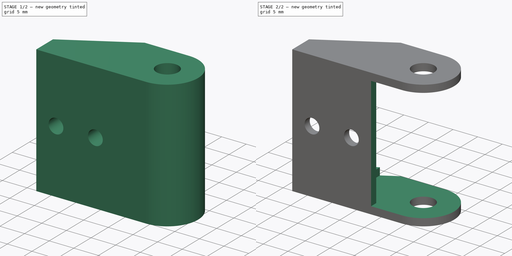
[diagram: build sequence overview — one tinted view per stage of 2, left to right]
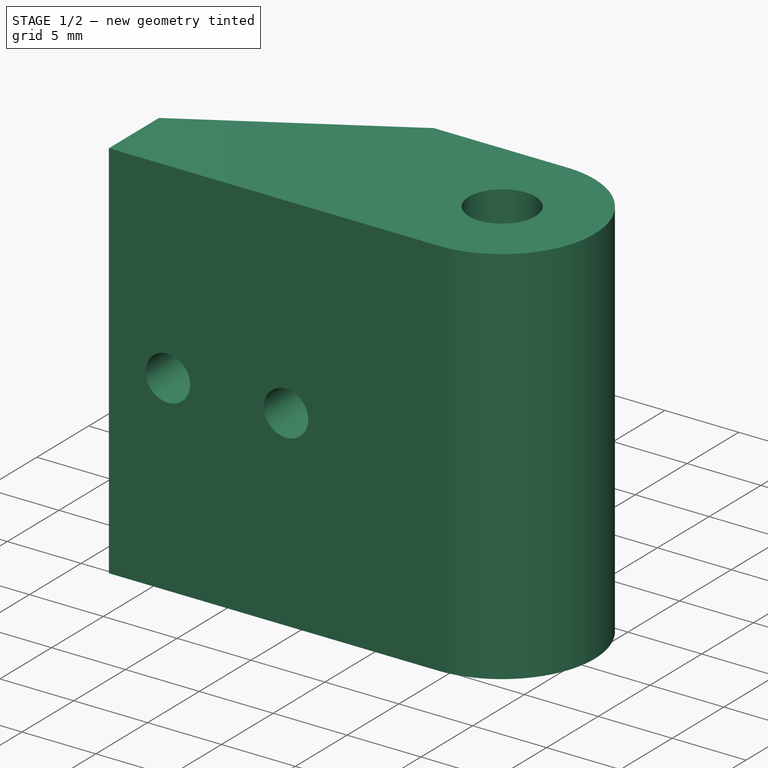
[diagram: stage 1 of 2 — iso view after this stage's code; geometry added in this stage tinted green]
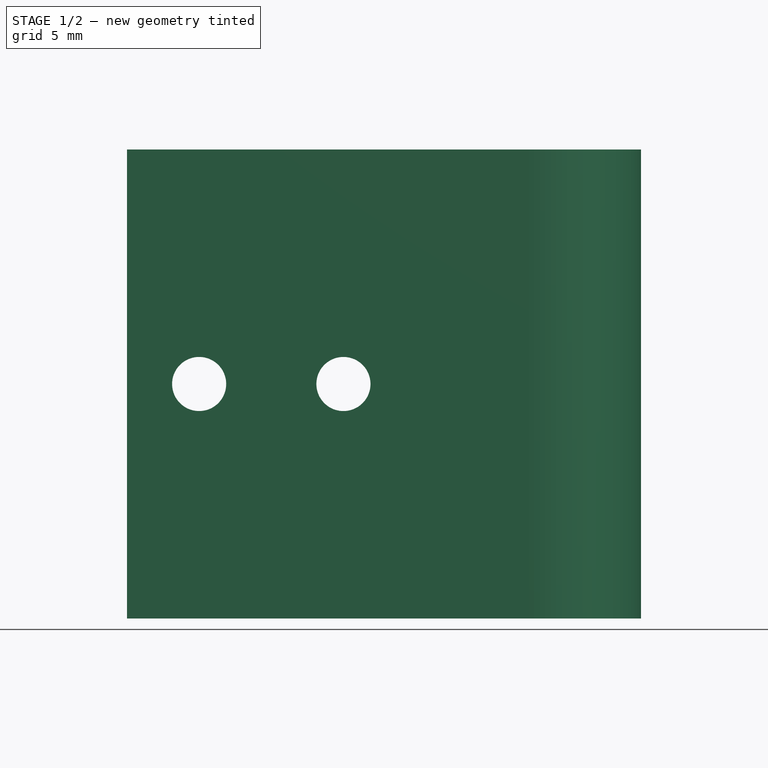
[diagram: stage 1 of 2 — front view after this stage's code; geometry added in this stage tinted green]
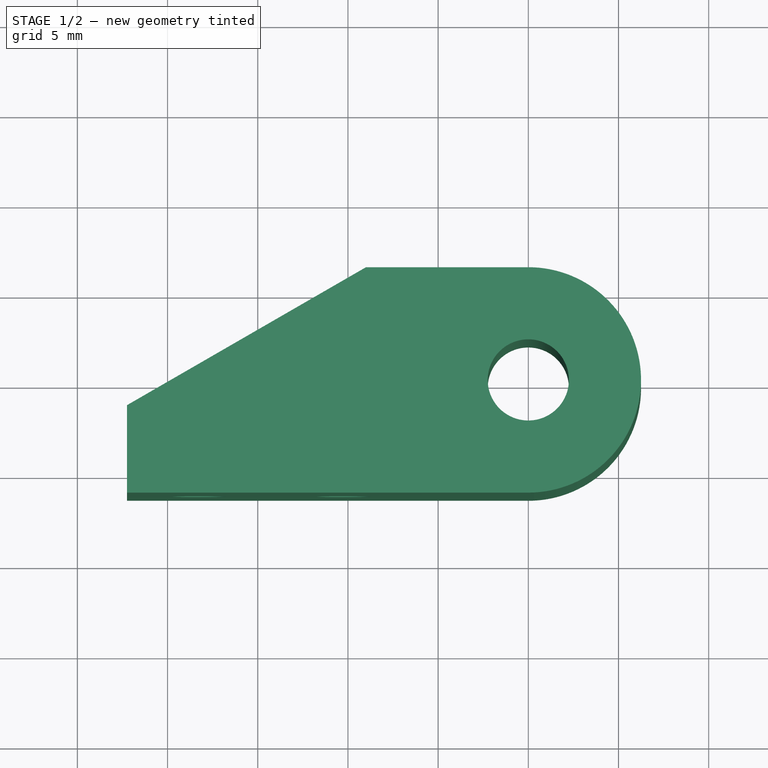
[diagram: stage 1 of 2 — top view after this stage's code; geometry added in this stage tinted green]
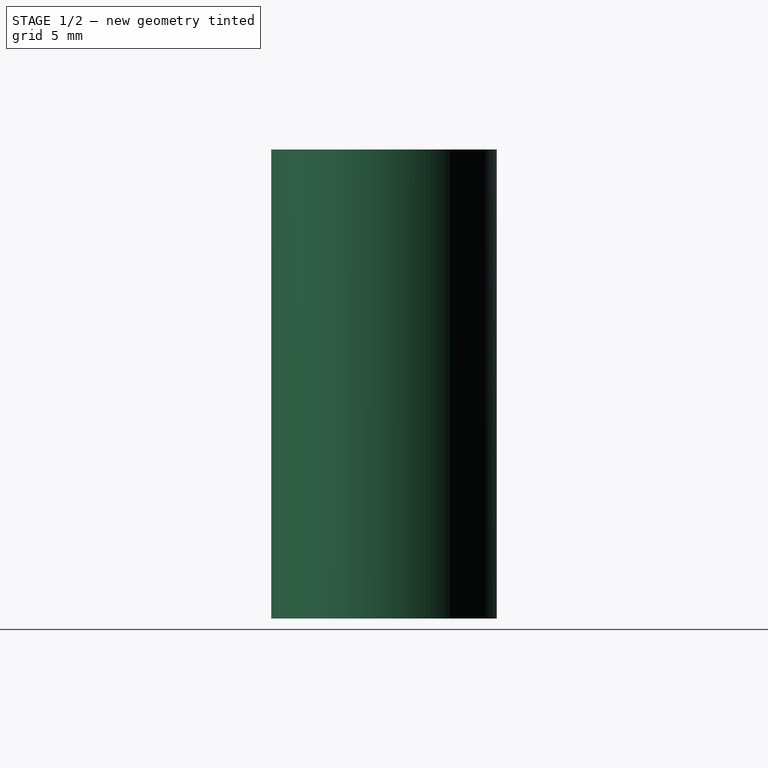
[diagram: stage 1 of 2 — right view after this stage's code; geometry added in this stage tinted green]
FCSTD DOCUMENT  (FreeCAD 0.14R3310 (Git))
Label: 83. IGUS (PORTACABLES GRANDE) CABLE CHAIN (ANCLAJE AL EJE)
License: CC-BY 3.0
LicenseURL: http://creativecommons.org/licenses/by/3.0/
objects: Sketcher::SketchObject×4, PartDesign::Pocket×3, PartDesign::Pad×1
note: 12 computed .brp shape members not serialized (recipe doc carries the construction recipe); baked Part::Feature solids carry a one-line shape summary decoded from their .brp

FEATURE [Sketcher::SketchObject] Sketch
  sketch-geometry (6):
    g0: Circle CenterX=0 CenterY=0 CenterZ=0 NormalX=0 NormalY=0 NormalZ=1 Radius=2.25
    g1: ArcOfCircle CenterX=0 CenterY=0 CenterZ=0 NormalX=0 NormalY=0 NormalZ=1 Radius=6.25 StartAngle=4.71239 EndAngle=7.85398
    g2: LineSegment StartX=4.0798e-08 StartY=6.25 StartZ=0 EndX=-8.99979 EndY=6.25 EndZ=0
    g3: LineSegment StartX=2.56518e-05 StartY=-6.25 StartZ=0 EndX=-22.25 EndY=-6.25 EndZ=0
    g4: LineSegment StartX=-22.25 StartY=-6.25 StartZ=0 EndX=-22.25 EndY=-1.4 EndZ=0
    g5: LineSegment StartX=-22.25 StartY=-1.4 StartZ=0 EndX=-8.99979 EndY=6.25 EndZ=0
  constraints (18):
    c: Coincident(g0,g-1)
    c: Radius(g0) = 2.25
    c: Coincident(g1,g-1)
    c: Coincident(g2,g1)
    c: Horizontal(g2)
    c: Coincident(g3,g1)
    c: Horizontal(g3)
    c: Tangent(g3,g1)
    c: Tangent(g2,g1)
    c: Distance(g3) = 22.25
    c: Radius(g1) = 6.25
    c: Vertical(g4)
    c: Distance(g4) = 4.85
    c: Coincident(g5,g4)
    c: Coincident(g5,g2)
    c: Angle(g4,g5) = 2.0944
    c: Distance(g5) = 15.3
    c: Coincident(g4,g3)
FEATURE [PartDesign::Pad] Pad
  Length = 26
  Length2 = 100
  Sketch = -> Sketch
  Type = 0
FEATURE [Sketcher::SketchObject] Sketch001
  ExternalGeometry = -> [Pad]
  Placement = pos=(0,-6.25,0) rot=(1,0,0;1.5708rad)
  Support = -> Pad [Face5]
  sketch-geometry (2):
    g0: Circle CenterX=-18.25 CenterY=13 CenterZ=0 NormalX=0 NormalY=0 NormalZ=1 Radius=1.5
    g1: Circle CenterX=-10.25 CenterY=13 CenterZ=0 NormalX=0 NormalY=0 NormalZ=1 Radius=1.5
  constraints (6):
    c: Equal(g0,g1)
    c: Radius(g0) = 1.5
    c: Distance(g0,g-3) = 4
    c: DistanceY(g-1,g0) = 13
    c: DistanceY(g-1,g1) = 13
    c: Distance(g1,g0) = 8
FEATURE [PartDesign::Pocket] Pocket
  Length = 5
  Sketch = -> Sketch001
  Type = 1
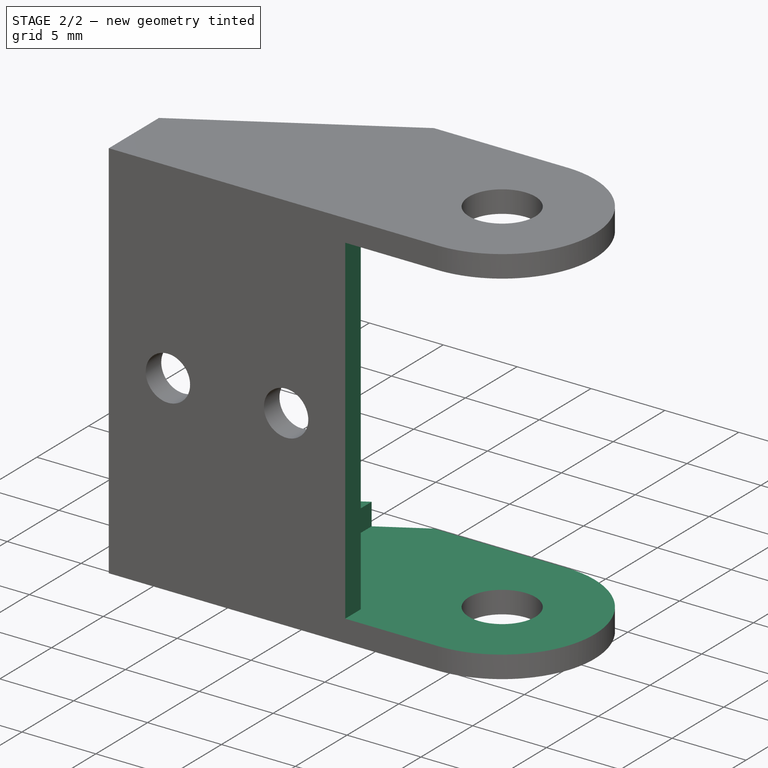
[diagram: stage 2 of 2 — iso view after this stage's code; geometry added in this stage tinted green]
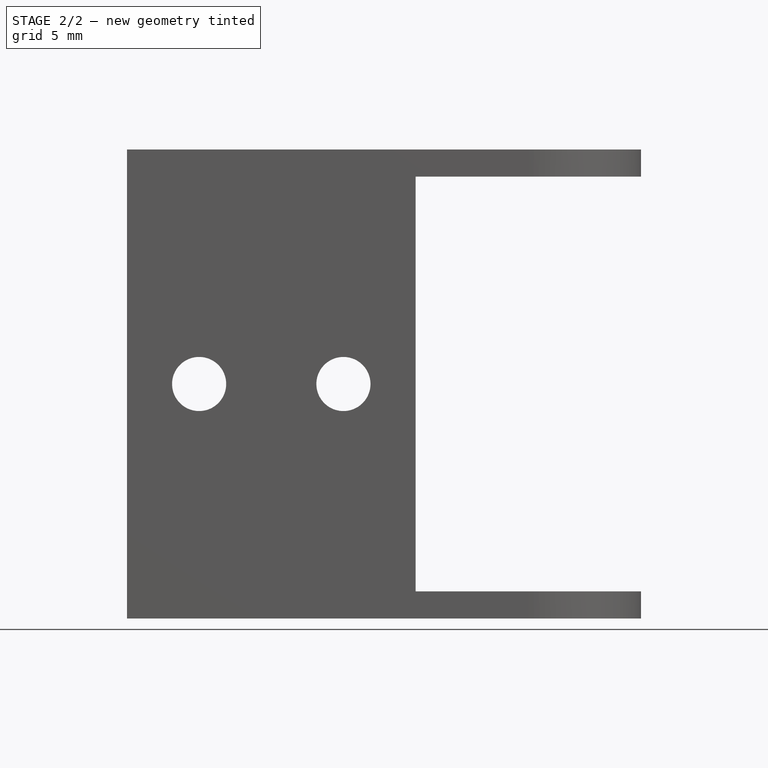
[diagram: stage 2 of 2 — front view after this stage's code; geometry added in this stage tinted green]
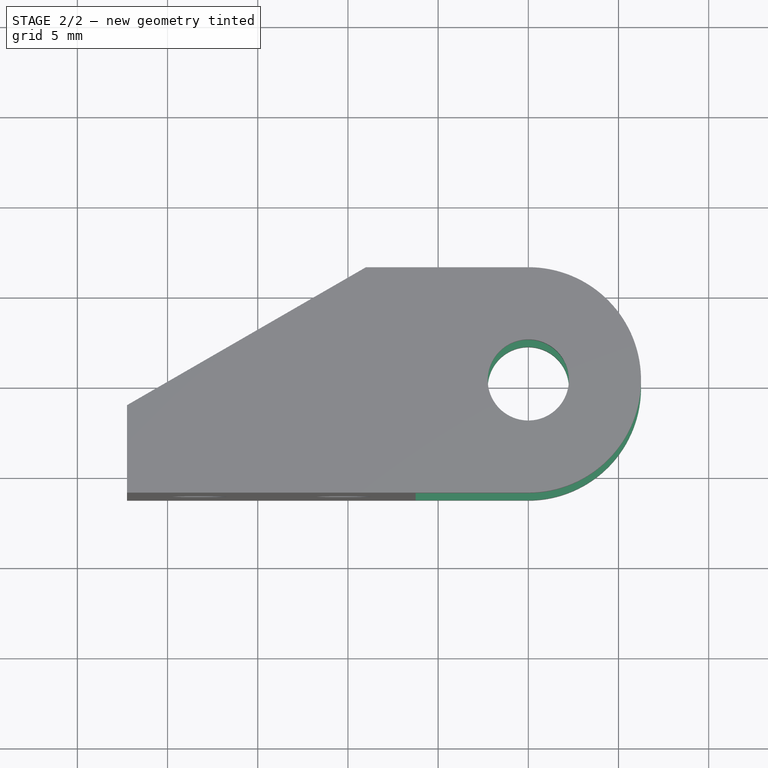
[diagram: stage 2 of 2 — top view after this stage's code; geometry added in this stage tinted green]
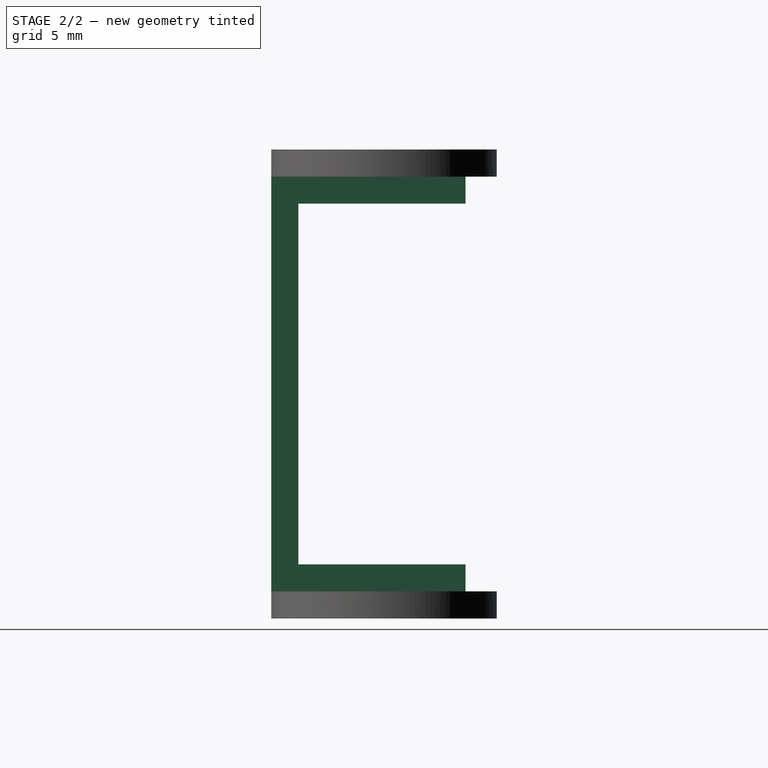
[diagram: stage 2 of 2 — right view after this stage's code; geometry added in this stage tinted green]
FEATURE [Sketcher::SketchObject] Sketch002
  ExternalGeometry = -> [Pocket]
  Placement = pos=(0,6.25,0) rot=(0,0.707107,0.707107;3.14159rad)
  Support = -> Pocket [Face3]
  sketch-geometry (9):
    g0: LineSegment StartX=12 StartY=23 StartZ=0 EndX=22.25 EndY=23 EndZ=0
    g1: LineSegment StartX=22.25 StartY=23 StartZ=0 EndX=22.25 EndY=3 EndZ=0
    g2: LineSegment StartX=22.25 StartY=3 StartZ=0 EndX=12 EndY=3 EndZ=0
    g3: LineSegment StartX=-13 StartY=24.5 StartZ=0 EndX=12 EndY=24.5 EndZ=0
    g4: LineSegment [constr] StartX=12 StartY=24.5 StartZ=0 EndX=12 EndY=1.5 EndZ=0
    g5: LineSegment StartX=12 StartY=1.5 StartZ=0 EndX=-13 EndY=1.5 EndZ=0
    g6: LineSegment StartX=-13 StartY=1.5 StartZ=0 EndX=-13 EndY=24.5 EndZ=0
    g7: LineSegment StartX=12 StartY=23 StartZ=0 EndX=12 EndY=24.5 EndZ=0
    g8: LineSegment StartX=12 StartY=3 StartZ=0 EndX=12 EndY=1.5 EndZ=0
  constraints (26):
    c: Coincident(g0,g1)
    c: Coincident(g1,g2)
    c: Horizontal(g0)
    c: Horizontal(g2)
    c: Vertical(g1)
    c: Coincident(g3,g4)
    c: Coincident(g4,g5)
    c: Coincident(g5,g6)
    c: Coincident(g6,g3)
    c: Horizontal(g3)
    c: Horizontal(g5)
    c: Vertical(g4)
    c: Vertical(g6)
    c: PointOnObject(g0,g4)
    c: PointOnObject(g2,g4)
    c: PointOnObject(g0,g-3)
    c: Distance(g0,g4) = 10.25
    c: Distance(g3) = 25
    c: Coincident(g7,g0)
    c: Coincident(g7,g3)
    c: Coincident(g8,g2)
    c: Coincident(g8,g4)
    c: Distance(g1,g-3) = 3
    c: Distance(g-3,g0) = 3
    c: Distance(g6) = 23
    c: Distance(g4,g2) = 1.5
FEATURE [PartDesign::Pocket] Pocket001
  Length = 11
  Sketch = -> Sketch002
  Type = 0
FEATURE [Sketcher::SketchObject] Sketch003
  ExternalGeometry = -> [Pocket001]
  Placement = pos=(0,-4.75,0) rot=(0,0.707107,0.707107;3.14159rad)
  Support = -> Pocket001 [Face5]
  sketch-geometry (4):
    g0: LineSegment StartX=-13.75 StartY=24.5 StartZ=0 EndX=6.24997 EndY=24.5 EndZ=0
    g1: LineSegment StartX=6.24997 StartY=24.5 StartZ=0 EndX=6.24997 EndY=1.5 EndZ=0
    g2: LineSegment StartX=6.24997 StartY=1.5 StartZ=0 EndX=-13.75 EndY=1.5 EndZ=0
    g3: LineSegment StartX=-13.75 StartY=1.5 StartZ=0 EndX=-13.75 EndY=24.5 EndZ=0
  constraints (12):
    c: Coincident(g0,g1)
    c: Coincident(g1,g2)
    c: Coincident(g2,g3)
    c: Coincident(g3,g0)
    c: Horizontal(g0)
    c: Horizontal(g2)
    c: Vertical(g1)
    c: Vertical(g3)
    c: Distance(g0,g-5) = 16
    c: PointOnObject(g0,g-3)
    c: PointOnObject(g1,g-4)
    c: Distance(g0) = 20
FEATURE [PartDesign::Pocket] Pocket002
  Length = 5
  Sketch = -> Sketch003
  Type = 0
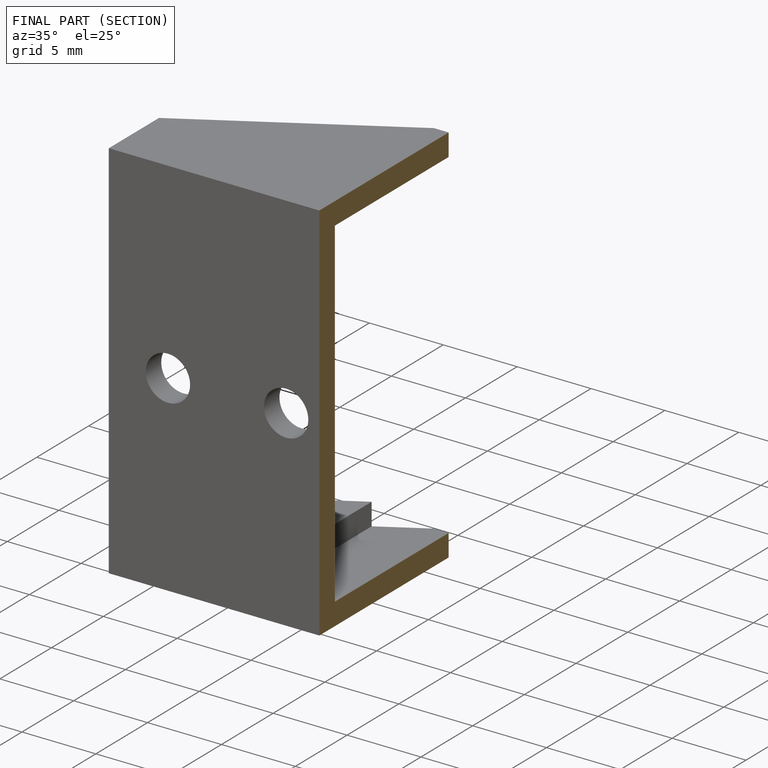
[diagram: finished part — half-section view (interior)]
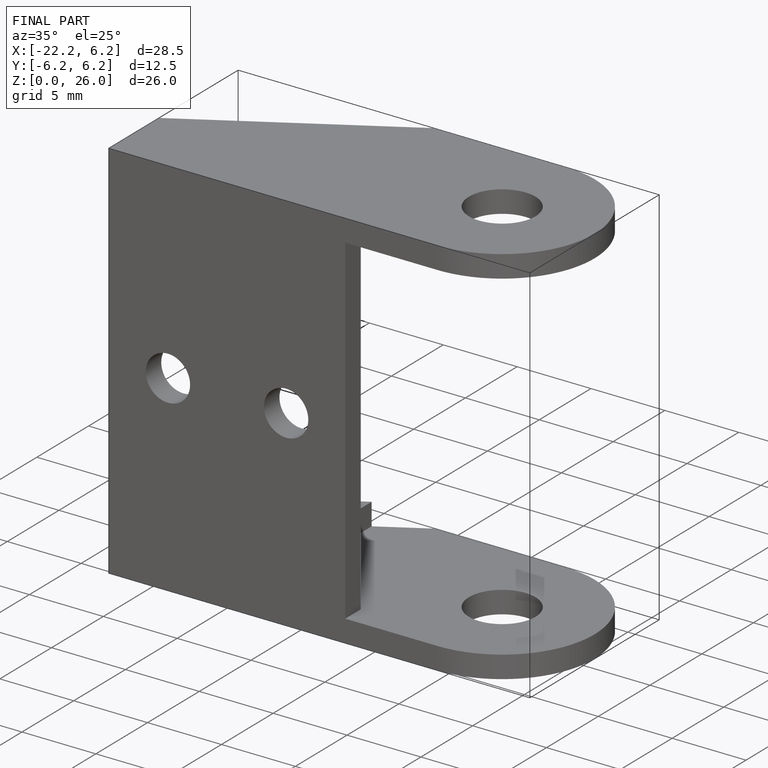
[diagram: finished part — iso view with bounding-box wireframe]
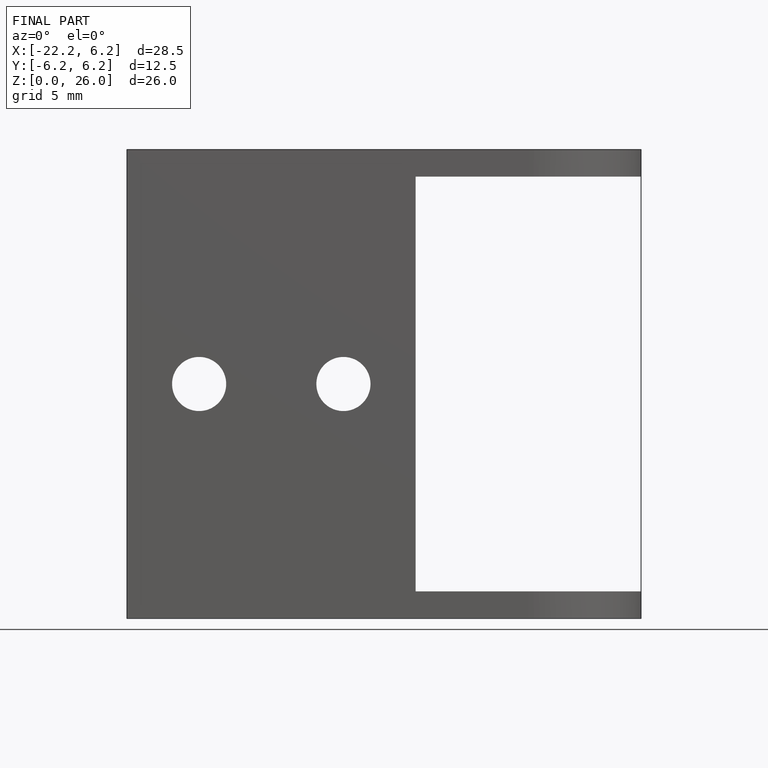
[diagram: finished part — front view with bounding-box wireframe]
